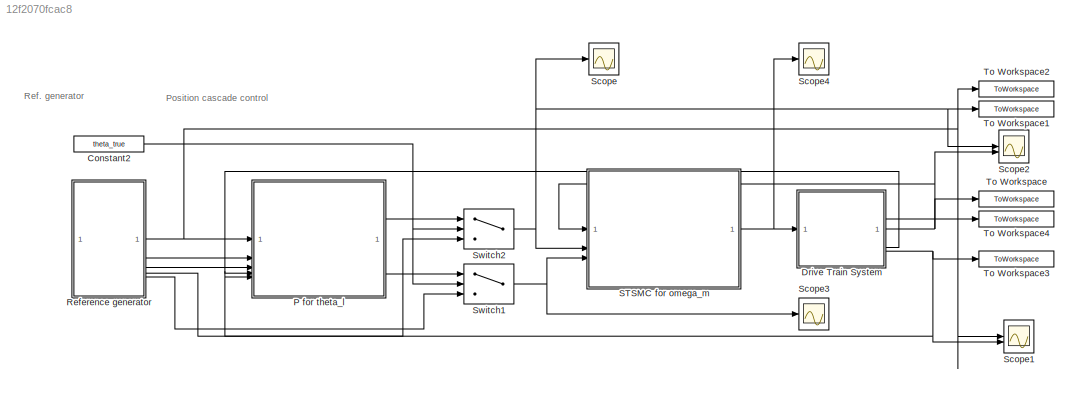
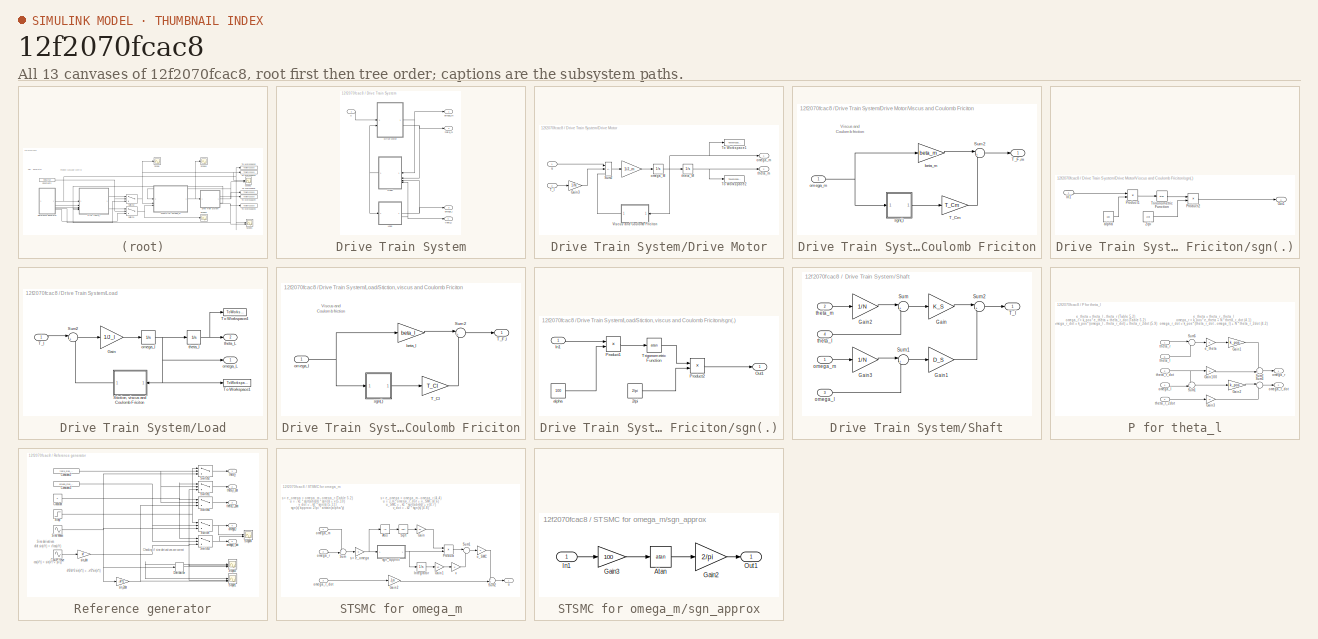
[diagram: thumbnail index - all 13 canvases of the model, root first then tree order]
MODEL slx_12f2070fcac8
KIND model
CONFIG AbsTol = auto
CONFIG EnableMultiTasking = off
CONFIG FixedStep = auto
CONFIG MaxStep = auto
CONFIG MinStep = auto
CONFIG RelTol = 1e-3
CONFIG SampleTimeConstraint = Unconstrained
CONFIG SolverName = VariableStepAuto
CONFIG StartTime = 0.0
CONFIG StopTime = 10.0
BLOCK [Constant] Constant2
  Value = theta_true
BLOCK [SubSystem] Drive Train System
BLOCK [SubSystem] Drive Train System/Drive Motor
BLOCK [Gain] Drive Train System/Drive Motor/              
  Gain = 1/J_m
BLOCK [Gain] Drive Train System/Drive Motor/Gain3
  Gain = 1/N
BLOCK [Sum] Drive Train System/Drive Motor/Sum2
  IconShape = rectangular
  Inputs = +--
BLOCK [Inport] Drive Train System/Drive Motor/T_l
  Port = 2
BLOCK [ToWorkspace] Drive Train System/Drive Motor/To Workspace1
  FixptAsFi = on
  MaxDataPoints = inf
  SampleTime = T_s
  SaveFormat = Timeseries
  VariableName = omega_m
BLOCK [ToWorkspace] Drive Train System/Drive Motor/To Workspace2
  FixptAsFi = on
  MaxDataPoints = inf
  SampleTime = T_s
  SaveFormat = Timeseries
  VariableName = theta_m
BLOCK [SubSystem] Drive Train System/Drive Motor/Viscus and Coulomb Friciton
BLOCK [Sum] Drive Train System/Drive Motor/Viscus and Coulomb Friciton/Sum2
  Inputs = |++
BLOCK [Gain] Drive Train System/Drive Motor/Viscus and Coulomb Friciton/T_Cm
  Gain = T_Cm
BLOCK [Outport] Drive Train System/Drive Motor/Viscus and Coulomb Friciton/T_F,m
BLOCK [Gain] Drive Train System/Drive Motor/Viscus and Coulomb Friciton/beta_m
  Gain = beta_m
BLOCK [Inport] Drive Train System/Drive Motor/Viscus and Coulomb Friciton/omega_m
BLOCK [SubSystem] Drive Train System/Drive Motor/Viscus and Coulomb Friciton/sgn(.)
BLOCK [Constant] Drive Train System/Drive Motor/Viscus and Coulomb Friciton/sgn(.)/2//pi
  Value = 2/pi
BLOCK [Inport] Drive Train System/Drive Motor/Viscus and Coulomb Friciton/sgn(.)/In1
BLOCK [Outport] Drive Train System/Drive Motor/Viscus and Coulomb Friciton/sgn(.)/Out1
BLOCK [Product] Drive Train System/Drive Motor/Viscus and Coulomb Friciton/sgn(.)/Product1
BLOCK [Product] Drive Train System/Drive Motor/Viscus and Coulomb Friciton/sgn(.)/Product2
BLOCK [Trigonometry] Drive Train System/Drive Motor/Viscus and Coulomb Friciton/sgn(.)/Trigonometric Function
  Operator = atan
  SampleTime = T_s
BLOCK [Constant] Drive Train System/Drive Motor/Viscus and Coulomb Friciton/sgn(.)/alpha
  Value = 100
BLOCK [Integrator] Drive Train System/Drive Motor/omega_M
  InitialCondition = x_0(1)
BLOCK [Outport] Drive Train System/Drive Motor/omega_m
BLOCK [Integrator] Drive Train System/Drive Motor/theta_M
  InitialCondition = x_0(2)
BLOCK [Outport] Drive Train System/Drive Motor/theta_m
  Port = 2
BLOCK [Inport] Drive Train System/Drive Motor/u
BLOCK [SubSystem] Drive Train System/Load
BLOCK [Gain] Drive Train System/Load/Gain
  Gain = 1/J_l
BLOCK [SubSystem] Drive Train System/Load/Stiction, viscus and Coulomb Friciton
BLOCK [Sum] Drive Train System/Load/Stiction, viscus and Coulomb Friciton/Sum2
  Inputs = |++
BLOCK [Gain] Drive Train System/Load/Stiction, viscus and Coulomb Friciton/T_Cl
  Gain = T_Cl
BLOCK [Outport] Drive Train System/Load/Stiction, viscus and Coulomb Friciton/T_F,l
BLOCK [Gain] Drive Train System/Load/Stiction, viscus and Coulomb Friciton/beta_l
  Gain = beta_l
BLOCK [Inport] Drive Train System/Load/Stiction, viscus and Coulomb Friciton/omega_l
BLOCK [SubSystem] Drive Train System/Load/Stiction, viscus and Coulomb Friciton/sgn(.)
BLOCK [Constant] Drive Train System/Load/Stiction, viscus and Coulomb Friciton/sgn(.)/2//pi
  Value = 2/pi
BLOCK [Inport] Drive Train System/Load/Stiction, viscus and Coulomb Friciton/sgn(.)/In1
BLOCK [Outport] Drive Train System/Load/Stiction, viscus and Coulomb Friciton/sgn(.)/Out1
BLOCK [Product] Drive Train System/Load/Stiction, viscus and Coulomb Friciton/sgn(.)/Product1
BLOCK [Product] Drive Train System/Load/Stiction, viscus and Coulomb Friciton/sgn(.)/Product2
BLOCK [Trigonometry] Drive Train System/Load/Stiction, viscus and Coulomb Friciton/sgn(.)/Trigonometric Function
  Operator = atan
  SampleTime = T_s
BLOCK [Constant] Drive Train System/Load/Stiction, viscus and Coulomb Friciton/sgn(.)/alpha
  Value = 100
BLOCK [Sum] Drive Train System/Load/Sum2
  Inputs = |+-
BLOCK [Inport] Drive Train System/Load/T_l
BLOCK [ToWorkspace] Drive Train System/Load/To Workspace1
  FixptAsFi = on
  MaxDataPoints = inf
  SampleTime = T_log
  SaveFormat = Timeseries
  VariableName = omega_l
BLOCK [ToWorkspace] Drive Train System/Load/To Workspace4
  FixptAsFi = on
  MaxDataPoints = inf
  SampleTime = T_log
  SaveFormat = Timeseries
  VariableName = theta_l
BLOCK [Outport] Drive Train System/Load/omega_L
BLOCK [Integrator] Drive Train System/Load/omega_l
  InitialCondition = x_l_0(1)
BLOCK [Outport] Drive Train System/Load/theta_L
  Port = 2
BLOCK [Integrator] Drive Train System/Load/theta_l
  InitialCondition = x_l_0(2)
BLOCK [SubSystem] Drive Train System/Shaft
BLOCK [Gain] Drive Train System/Shaft/Gain
  Gain = K_S
BLOCK [Gain] Drive Train System/Shaft/Gain1
  Gain = D_S
BLOCK [Gain] Drive Train System/Shaft/Gain2
  Gain = 1/N
BLOCK [Gain] Drive Train System/Shaft/Gain3
  Gain = 1/N
BLOCK [Sum] Drive Train System/Shaft/Sum
  Inputs = |+-
BLOCK [Sum] Drive Train System/Shaft/Sum1
  Inputs = |+-
BLOCK [Sum] Drive Train System/Shaft/Sum2
  Inputs = |++
BLOCK [Outport] Drive Train System/Shaft/T_l
BLOCK [Inport] Drive Train System/Shaft/omega_l
  Port = 3
BLOCK [Inport] Drive Train System/Shaft/omega_m
BLOCK [Inport] Drive Train System/Shaft/theta_l
  Port = 4
BLOCK [Inport] Drive Train System/Shaft/theta_m
  Port = 2
BLOCK [Outport] Drive Train System/omega_l
  Port = 3
BLOCK [Outport] Drive Train System/omega_m
BLOCK [Outport] Drive Train System/theta_l
  Port = 4
BLOCK [Outport] Drive Train System/theta_m
  Port = 2
BLOCK [Inport] Drive Train System/u
BLOCK [SubSystem] P for theta_l
BLOCK [Gain] P for theta_l/Gain1
  Gain = k_pos
BLOCK [Gain] P for theta_l/Gain100
  Gain = N
BLOCK [Gain] P for theta_l/Gain2
  Gain = k_pos
BLOCK [Gain] P for theta_l/Gain3
  Gain = N
BLOCK [Sum] P for theta_l/Sum1
  Inputs = +-|
BLOCK [Sum] P for theta_l/Sum2
  Inputs = ++|
BLOCK [Sum] P for theta_l/Sum3
  Inputs = |++
BLOCK [Sum] P for theta_l/Sum5
  Inputs = |+-
BLOCK [Gain] P for theta_l/e_theta
BLOCK [Inport] P for theta_l/omega_l
  Port = 4
BLOCK [Outport] P for theta_l/omega_r
BLOCK [Outport] P for theta_l/omega_r_dot
  Port = 2
BLOCK [Inport] P for theta_l/theta_l
  Port = 5
BLOCK [Inport] P for theta_l/theta_r
BLOCK [Inport] P for theta_l/theta_r_2dot
  Port = 3
BLOCK [Inport] P for theta_l/theta_r_dot
  Port = 2
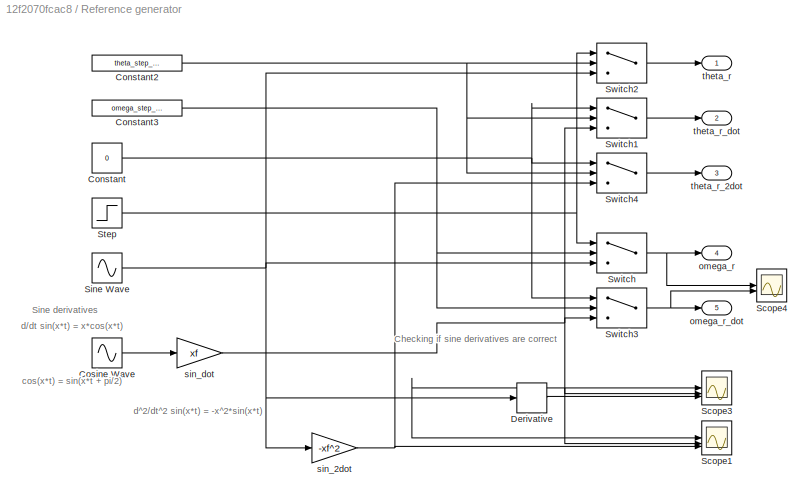
BLOCK [SubSystem] Reference generator
BLOCK [Constant] Reference generator/Constant
  Value = 0
BLOCK [Constant] Reference generator/Constant2
  Value = theta_step_true
BLOCK [Constant] Reference generator/Constant3
  Value = omega_step_true
BLOCK [Sin] Reference generator/Cosine Wave
  Frequency = xf
  Phase = pi/2
  SampleTime = 0
BLOCK [Derivative] Reference generator/Derivative
  CoefficientInTFapproximation = 1/100
BLOCK [Scope] Reference generator/Scope1
  Floating = off
  NumInputPorts = 3
  ScopeSpecificationString = Simulink.scopes.TimeScopeBlockCfg('CurrentConfiguration', extmgr.ConfigurationSet(extmgr.Configuration('Core','General UI',true),extmgr.Configuration('Core','Source UI',true),extmgr.Configuration('Sources','WiredSimulink',true,'DataLoggingVariableName','ScopeData2'),extmgr.Configuration('Visuals','Time Domain',true,'SerializedDisplays',{struct('MinYLimReal','-1.25','MaxYLimReal','1.25','YLabelReal...<+1455ch>
BLOCK [Scope] Reference generator/Scope3
  Floating = off
  NumInputPorts = 3
  ScopeSpecificationString = Simulink.scopes.TimeScopeBlockCfg('CurrentConfiguration', extmgr.ConfigurationSet(extmgr.Configuration('Core','General UI',true),extmgr.Configuration('Core','Source UI',true),extmgr.Configuration('Sources','WiredSimulink',true,'DataLoggingVariableName','ScopeData3'),extmgr.Configuration('Visuals','Time Domain',true,'SerializedDisplays',{struct('MinYLimReal','-1.25','MaxYLimReal','1.25','YLabelReal...<+1457ch>
BLOCK [Scope] Reference generator/Scope4
  Floating = off
  NumInputPorts = 2
  ScopeSpecificationString = Simulink.scopes.TimeScopeBlockCfg('CurrentConfiguration', extmgr.ConfigurationSet(extmgr.Configuration('Core','General UI',true),extmgr.Configuration('Core','Source UI',true),extmgr.Configuration('Sources','WiredSimulink',true,'DataLoggingVariableName','ScopeData1'),extmgr.Configuration('Visuals','Time Domain',true,'SerializedDisplays',{struct('MinYLimReal','-1.25','MaxYLimReal','1.25','YLabelReal...<+1512ch>
BLOCK [Sin] Reference generator/Sine Wave
  Frequency = xf
  SampleTime = 0
BLOCK [Step] Reference generator/Step
  SampleTime = 0
BLOCK [Switch] Reference generator/Switch
  Criteria = u2 > Threshold
  InputSameDT = off
  SaturateOnIntegerOverflow = off
BLOCK [Switch] Reference generator/Switch1
  Criteria = u2 > Threshold
  InputSameDT = off
  SaturateOnIntegerOverflow = off
BLOCK [Switch] Reference generator/Switch2
  Criteria = u2 > Threshold
  InputSameDT = off
  SaturateOnIntegerOverflow = off
BLOCK [Switch] Reference generator/Switch3
  Criteria = u2 > Threshold
  InputSameDT = off
  SaturateOnIntegerOverflow = off
BLOCK [Switch] Reference generator/Switch4
  Criteria = u2 > Threshold
  InputSameDT = off
  SaturateOnIntegerOverflow = off
BLOCK [Outport] Reference generator/omega_r
  Port = 4
BLOCK [Outport] Reference generator/omega_r_dot
  Port = 5
BLOCK [Gain] Reference generator/sin_2dot
  Gain = -xf^2
BLOCK [Gain] Reference generator/sin_dot
  Gain = xf
BLOCK [Outport] Reference generator/theta_r
BLOCK [Outport] Reference generator/theta_r_2dot
  Port = 3
BLOCK [Outport] Reference generator/theta_r_dot
  Port = 2
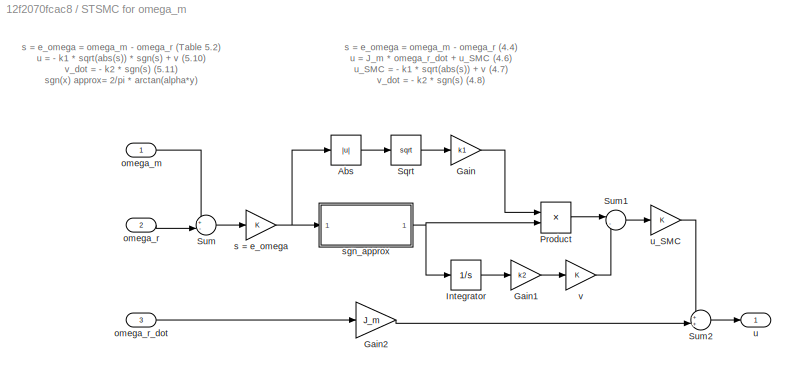
BLOCK [SubSystem] STSMC for omega_m
BLOCK [Abs] STSMC for omega_m/Abs
  SaturateOnIntegerOverflow = off
BLOCK [Gain] STSMC for omega_m/Gain
  Gain = k1
BLOCK [Gain] STSMC for omega_m/Gain1
  Gain = k2
BLOCK [Gain] STSMC for omega_m/Gain2
  Gain = J_m
BLOCK [Integrator] STSMC for omega_m/Integrator
BLOCK [Product] STSMC for omega_m/Product
BLOCK [Sqrt] STSMC for omega_m/Sqrt
BLOCK [Sum] STSMC for omega_m/Sum
  Inputs = +-|
BLOCK [Sum] STSMC for omega_m/Sum1
  Inputs = |--
BLOCK [Sum] STSMC for omega_m/Sum2
  Inputs = ++|
BLOCK [Inport] STSMC for omega_m/omega_m
BLOCK [Inport] STSMC for omega_m/omega_r
  Port = 2
BLOCK [Inport] STSMC for omega_m/omega_r_dot
  Port = 3
BLOCK [Gain] STSMC for omega_m/s = e_omega
BLOCK [SubSystem] STSMC for omega_m/sgn_approx
BLOCK [Trigonometry] STSMC for omega_m/sgn_approx/Atan
  Operator = atan
BLOCK [Gain] STSMC for omega_m/sgn_approx/Gain2
  Gain = 2/pi
BLOCK [Gain] STSMC for omega_m/sgn_approx/Gain3
  Gain = 100
BLOCK [Inport] STSMC for omega_m/sgn_approx/In1
BLOCK [Outport] STSMC for omega_m/sgn_approx/Out1
BLOCK [Outport] STSMC for omega_m/u
BLOCK [Gain] STSMC for omega_m/u_SMC
BLOCK [Gain] STSMC for omega_m/v
BLOCK [Scope] Scope
  Floating = off
  NumInputPorts = 1
  ScopeSpecificationString = Simulink.scopes.TimeScopeBlockCfg('CurrentConfiguration', extmgr.ConfigurationSet(extmgr.Configuration('Core','General UI',true),extmgr.Configuration('Core','Source UI',true),extmgr.Configuration('Sources','WiredSimulink',true,'DataLoggingVariableName','ScopeData2'),extmgr.Configuration('Visuals','Time Domain',true,'SerializedDisplays',{struct('MinYLimReal','-57.2427','MaxYLimReal','56.53432','YLa...<+1410ch>
BLOCK [Scope] Scope1
  Floating = off
  NumInputPorts = 2
  ScopeSpecificationString = Simulink.scopes.TimeScopeBlockCfg('CurrentConfiguration', extmgr.ConfigurationSet(extmgr.Configuration('Core','General UI',true),extmgr.Configuration('Core','Source UI',true),extmgr.Configuration('Sources','WiredSimulink',true,'DataLoggingVariableName','ScopeData1'),extmgr.Configuration('Visuals','Time Domain',true,'SerializedDisplays',{struct('MinYLimReal','-3.30569','MaxYLimReal','3.68822','YLab...<+1489ch>
BLOCK [Scope] Scope2
  Floating = off
  NumInputPorts = 2
  ScopeSpecificationString = Simulink.scopes.TimeScopeBlockCfg('CurrentConfiguration', extmgr.ConfigurationSet(extmgr.Configuration('Core','General UI',true),extmgr.Configuration('Core','Source UI',true),extmgr.Configuration('Sources','WiredSimulink',true,'DataLoggingVariableName','ScopeData3'),extmgr.Configuration('Visuals','Time Domain',true,'SerializedDisplays',{struct('MinYLimReal','-42.39012','MaxYLimReal','40.53692','YL...<+1479ch>
BLOCK [Scope] Scope3
  Floating = off
  NumInputPorts = 1
  ScopeSpecificationString = Simulink.scopes.TimeScopeBlockCfg('CurrentConfiguration', extmgr.ConfigurationSet(extmgr.Configuration('Core','General UI',true),extmgr.Configuration('Core','Source UI',true),extmgr.Configuration('Sources','WiredSimulink',true,'DataLoggingVariableName','ScopeData3'),extmgr.Configuration('Visuals','Time Domain',true,'SerializedDisplays',{struct('MinYLimReal','-276.14576','MaxYLimReal','281.80097','...<+1447ch>
BLOCK [Scope] Scope4
  Floating = off
  NumInputPorts = 1
  ScopeSpecificationString = Simulink.scopes.TimeScopeBlockCfg('CurrentConfiguration', extmgr.ConfigurationSet(extmgr.Configuration('Core','General UI',true),extmgr.Configuration('Core','Source UI',true),extmgr.Configuration('Sources','WiredSimulink',true,'DataLoggingVariableName','ScopeData10'),extmgr.Configuration('Visuals','Time Domain',true,'SerializedDisplays',{struct('MinYLimReal','-52.20481','MaxYLimReal','52.5919','YL...<+1446ch>
BLOCK [Switch] Switch1
  Criteria = u2 > Threshold
  InputSameDT = off
  SaturateOnIntegerOverflow = off
BLOCK [Switch] Switch2
  Criteria = u2 > Threshold
  InputSameDT = off
  SaturateOnIntegerOverflow = off
BLOCK [ToWorkspace] To Workspace
  FixptAsFi = on
  MaxDataPoints = inf
  SampleTime = -1
  SaveFormat = Timeseries
  VariableName = omega_m_out
BLOCK [ToWorkspace] To Workspace1
  FixptAsFi = on
  MaxDataPoints = inf
  SampleTime = -1
  SaveFormat = Timeseries
  VariableName = omega_r_out
BLOCK [ToWorkspace] To Workspace2
  FixptAsFi = on
  MaxDataPoints = inf
  SampleTime = -1
  SaveFormat = Timeseries
  VariableName = theta_r_out
BLOCK [ToWorkspace] To Workspace3
  FixptAsFi = on
  MaxDataPoints = inf
  SampleTime = -1
  SaveFormat = Timeseries
  VariableName = theta_l_out
BLOCK [ToWorkspace] To Workspace4
  FixptAsFi = on
  MaxDataPoints = inf
  SampleTime = -1
  SaveFormat = Timeseries
  VariableName = theta_m_out
ANNOTATION (root): Position cascade control
ANNOTATION (root): Ref. generator
ANNOTATION Drive Train System/Drive Motor/Viscus and Coulomb Friciton: Viscus and Coulomb friction
ANNOTATION Drive Train System/Load/Stiction, viscus and Coulomb Friciton: Viscus and Coulomb friction
ANNOTATION P for theta_l: e_theta = theta_l - theta_r (Table 5.2) omega_r = k_pos * e_theta + theta_r_dot (Table 5.2) omega_r_dot = k_pos * (omega_l - theta_r_dot) + theta_r_2dot (5.9)
ANNOTATION P for theta_l: e_theta = theta_r - theta_l omega_r = k_pos * e_theta + N * theta_r_dot (4.1) omega_r_dot = k_pos * (theta_r_dot - omega_l) + N * theta_r_2dot (4.2)
ANNOTATION Reference generator: Checking if sine derivatives are correct
ANNOTATION Reference generator: Sine derivatives
ANNOTATION Reference generator: d/dt sin(x*t) = x*cos(x*t) cos(x*t) = sin(x*t + pi/2)
ANNOTATION Reference generator: d^2/dt^2 sin(x*t) = -x^2*sin(x*t)
ANNOTATION STSMC for omega_m: s = e_omega = omega_m - omega_r (4.4) u = J_m * omega_r_dot + u_SMC (4.6) u_SMC = - k1 * sqrt(abs(s)) + v (4.7) v_dot = - k2 * sgn(s) (4.8)
ANNOTATION STSMC for omega_m: s = e_omega = omega_m - omega_r (Table 5.2) u = - k1 * sqrt(abs(s)) * sgn(s) + v (5.10) v_dot = - k2 * sgn(s) (5.11) sgn(x) approx= 2/pi * arctan(alpha*y)
NET Constant2:1 -> Switch1:2, Switch2:2
LINE Drive Train System/Drive Motor/              :1 -> Drive Train System/Drive Motor/omega_M:1
LINE Drive Train System/Drive Motor/Gain3:1 -> Drive Train System/Drive Motor/Sum2:2
LINE Drive Train System/Drive Motor/Sum2:1 -> Drive Train System/Drive Motor/              :1
LINE Drive Train System/Drive Motor/T_l:1 -> Drive Train System/Drive Motor/Gain3:1
LINE Drive Train System/Drive Motor/Viscus and Coulomb Friciton/Sum2:1 -> Drive Train System/Drive Motor/Viscus and Coulomb Friciton/T_F,m:1
LINE Drive Train System/Drive Motor/Viscus and Coulomb Friciton/T_Cm:1 -> Drive Train System/Drive Motor/Viscus and Coulomb Friciton/Sum2:2
LINE Drive Train System/Drive Motor/Viscus and Coulomb Friciton/beta_m:1 -> Drive Train System/Drive Motor/Viscus and Coulomb Friciton/Sum2:1
NET Drive Train System/Drive Motor/Viscus and Coulomb Friciton/omega_m:1 -> Drive Train System/Drive Motor/Viscus and Coulomb Friciton/beta_m:1, Drive Train System/Drive Motor/Viscus and Coulomb Friciton/sgn(.):1
LINE Drive Train System/Drive Motor/Viscus and Coulomb Friciton/sgn(.)/2//pi:1 -> Drive Train System/Drive Motor/Viscus and Coulomb Friciton/sgn(.)/Product2:2
LINE Drive Train System/Drive Motor/Viscus and Coulomb Friciton/sgn(.)/In1:1 -> Drive Train System/Drive Motor/Viscus and Coulomb Friciton/sgn(.)/Product1:1
LINE Drive Train System/Drive Motor/Viscus and Coulomb Friciton/sgn(.)/Product1:1 -> Drive Train System/Drive Motor/Viscus and Coulomb Friciton/sgn(.)/Trigonometric Function:1
LINE Drive Train System/Drive Motor/Viscus and Coulomb Friciton/sgn(.)/Product2:1 -> Drive Train System/Drive Motor/Viscus and Coulomb Friciton/sgn(.)/Out1:1
LINE Drive Train System/Drive Motor/Viscus and Coulomb Friciton/sgn(.)/Trigonometric Function:1 -> Drive Train System/Drive Motor/Viscus and Coulomb Friciton/sgn(.)/Product2:1
LINE Drive Train System/Drive Motor/Viscus and Coulomb Friciton/sgn(.)/alpha:1 -> Drive Train System/Drive Motor/Viscus and Coulomb Friciton/sgn(.)/Product1:2
LINE Drive Train System/Drive Motor/Viscus and Coulomb Friciton/sgn(.):1 -> Drive Train System/Drive Motor/Viscus and Coulomb Friciton/T_Cm:1
LINE Drive Train System/Drive Motor/Viscus and Coulomb Friciton:1 -> Drive Train System/Drive Motor/Sum2:3
NET Drive Train System/Drive Motor/omega_M:1 -> Drive Train System/Drive Motor/To Workspace1:1, Drive Train System/Drive Motor/Viscus and Coulomb Friciton:1, Drive Train System/Drive Motor/omega_m:1, Drive Train System/Drive Motor/theta_M:1
NET Drive Train System/Drive Motor/theta_M:1 -> Drive Train System/Drive Motor/To Workspace2:1, Drive Train System/Drive Motor/theta_m:1
LINE Drive Train System/Drive Motor/u:1 -> Drive Train System/Drive Motor/Sum2:1
NET Drive Train System/Drive Motor:1 -> Drive Train System/Shaft:1, Drive Train System/omega_m:1
NET Drive Train System/Drive Motor:2 -> Drive Train System/Shaft:2, Drive Train System/theta_m:1
LINE Drive Train System/Load/Gain:1 -> Drive Train System/Load/omega_l:1
LINE Drive Train System/Load/Stiction, viscus and Coulomb Friciton/Sum2:1 -> Drive Train System/Load/Stiction, viscus and Coulomb Friciton/T_F,l:1
LINE Drive Train System/Load/Stiction, viscus and Coulomb Friciton/T_Cl:1 -> Drive Train System/Load/Stiction, viscus and Coulomb Friciton/Sum2:2
LINE Drive Train System/Load/Stiction, viscus and Coulomb Friciton/beta_l:1 -> Drive Train System/Load/Stiction, viscus and Coulomb Friciton/Sum2:1
NET Drive Train System/Load/Stiction, viscus and Coulomb Friciton/omega_l:1 -> Drive Train System/Load/Stiction, viscus and Coulomb Friciton/beta_l:1, Drive Train System/Load/Stiction, viscus and Coulomb Friciton/sgn(.):1
LINE Drive Train System/Load/Stiction, viscus and Coulomb Friciton/sgn(.)/2//pi:1 -> Drive Train System/Load/Stiction, viscus and Coulomb Friciton/sgn(.)/Product2:2
LINE Drive Train System/Load/Stiction, viscus and Coulomb Friciton/sgn(.)/In1:1 -> Drive Train System/Load/Stiction, viscus and Coulomb Friciton/sgn(.)/Product1:1
LINE Drive Train System/Load/Stiction, viscus and Coulomb Friciton/sgn(.)/Product1:1 -> Drive Train System/Load/Stiction, viscus and Coulomb Friciton/sgn(.)/Trigonometric Function:1
LINE Drive Train System/Load/Stiction, viscus and Coulomb Friciton/sgn(.)/Product2:1 -> Drive Train System/Load/Stiction, viscus and Coulomb Friciton/sgn(.)/Out1:1
LINE Drive Train System/Load/Stiction, viscus and Coulomb Friciton/sgn(.)/Trigonometric Function:1 -> Drive Train System/Load/Stiction, viscus and Coulomb Friciton/sgn(.)/Product2:1
LINE Drive Train System/Load/Stiction, viscus and Coulomb Friciton/sgn(.)/alpha:1 -> Drive Train System/Load/Stiction, viscus and Coulomb Friciton/sgn(.)/Product1:2
LINE Drive Train System/Load/Stiction, viscus and Coulomb Friciton/sgn(.):1 -> Drive Train System/Load/Stiction, viscus and Coulomb Friciton/T_Cl:1
LINE Drive Train System/Load/Stiction, viscus and Coulomb Friciton:1 -> Drive Train System/Load/Sum2:2
LINE Drive Train System/Load/Sum2:1 -> Drive Train System/Load/Gain:1
LINE Drive Train System/Load/T_l:1 -> Drive Train System/Load/Sum2:1
NET Drive Train System/Load/omega_l:1 -> Drive Train System/Load/Stiction, viscus and Coulomb Friciton:1, Drive Train System/Load/To Workspace1:1, Drive Train System/Load/omega_L:1, Drive Train System/Load/theta_l:1
NET Drive Train System/Load/theta_l:1 -> Drive Train System/Load/To Workspace4:1, Drive Train System/Load/theta_L:1
NET Drive Train System/Load:1 -> Drive Train System/Shaft:3, Drive Train System/omega_l:1
NET Drive Train System/Load:2 -> Drive Train System/Shaft:4, Drive Train System/theta_l:1
LINE Drive Train System/Shaft/Gain1:1 -> Drive Train System/Shaft/Sum2:2
LINE Drive Train System/Shaft/Gain2:1 -> Drive Train System/Shaft/Sum:1
LINE Drive Train System/Shaft/Gain3:1 -> Drive Train System/Shaft/Sum1:1
LINE Drive Train System/Shaft/Gain:1 -> Drive Train System/Shaft/Sum2:1
LINE Drive Train System/Shaft/Sum1:1 -> Drive Train System/Shaft/Gain1:1
LINE Drive Train System/Shaft/Sum2:1 -> Drive Train System/Shaft/T_l:1
LINE Drive Train System/Shaft/Sum:1 -> Drive Train System/Shaft/Gain:1
LINE Drive Train System/Shaft/omega_l:1 -> Drive Train System/Shaft/Sum1:2
LINE Drive Train System/Shaft/omega_m:1 -> Drive Train System/Shaft/Gain3:1
LINE Drive Train System/Shaft/theta_l:1 -> Drive Train System/Shaft/Sum:2
LINE Drive Train System/Shaft/theta_m:1 -> Drive Train System/Shaft/Gain2:1
NET Drive Train System/Shaft:1 -> Drive Train System/Drive Motor:2, Drive Train System/Load:1
LINE Drive Train System/u:1 -> Drive Train System/Drive Motor:1
NET Drive Train System:1 -> STSMC for omega_m:1, Scope2:2, To Workspace:1
LINE Drive Train System:2 -> To Workspace4:1
LINE Drive Train System:3 -> P for theta_l:4
NET Drive Train System:4 -> P for theta_l:5, Scope1:2, To Workspace3:1
LINE P for theta_l/Gain100:1 -> P for theta_l/Sum2:2
LINE P for theta_l/Gain1:1 -> P for theta_l/Sum2:1
LINE P for theta_l/Gain2:1 -> P for theta_l/Sum3:1
LINE P for theta_l/Gain3:1 -> P for theta_l/Sum3:2
LINE P for theta_l/Sum1:1 -> P for theta_l/Gain2:1
LINE P for theta_l/Sum2:1 -> P for theta_l/omega_r:1
LINE P for theta_l/Sum3:1 -> P for theta_l/omega_r_dot:1
LINE P for theta_l/Sum5:1 -> P for theta_l/e_theta:1
LINE P for theta_l/e_theta:1 -> P for theta_l/Gain1:1
LINE P for theta_l/omega_l:1 -> P for theta_l/Sum1:2
LINE P for theta_l/theta_l:1 -> P for theta_l/Sum5:2
LINE P for theta_l/theta_r:1 -> P for theta_l/Sum5:1
LINE P for theta_l/theta_r_2dot:1 -> P for theta_l/Gain3:1
NET P for theta_l/theta_r_dot:1 -> P for theta_l/Gain100:1, P for theta_l/Sum1:1
LINE P for theta_l:1 -> Switch2:1
LINE P for theta_l:2 -> Switch1:1
NET Reference generator/Constant2:1 -> Reference generator/Switch1:2, Reference generator/Switch2:2, Reference generator/Switch4:2
NET Reference generator/Constant3:1 -> Reference generator/Switch3:2, Reference generator/Switch:2
NET Reference generator/Constant:1 -> Reference generator/Switch1:1, Reference generator/Switch3:1, Reference generator/Switch4:1
LINE Reference generator/Cosine Wave:1 -> Reference generator/sin_dot:1
LINE Reference generator/Derivative:1 -> Reference generator/Scope3:3
NET Reference generator/Sine Wave:1 -> Reference generator/Derivative:1, Reference generator/Scope1:1, Reference generator/Scope3:1, Reference generator/Switch2:3, Reference generator/Switch:3, Reference generator/sin_2dot:1
NET Reference generator/Step:1 -> Reference generator/Switch2:1, Reference generator/Switch:1
LINE Reference generator/Switch1:1 -> Reference generator/theta_r_dot:1
LINE Reference generator/Switch2:1 -> Reference generator/theta_r:1
NET Reference generator/Switch3:1 -> Reference generator/Scope4:2, Reference generator/omega_r_dot:1
LINE Reference generator/Switch4:1 -> Reference generator/theta_r_2dot:1
NET Reference generator/Switch:1 -> Reference generator/Scope4:1, Reference generator/omega_r:1
NET Reference generator/sin_2dot:1 -> Reference generator/Scope1:3, Reference generator/Switch4:3
NET Reference generator/sin_dot:1 -> Reference generator/Scope1:2, Reference generator/Scope3:2, Reference generator/Switch1:3, Reference generator/Switch3:3
NET Reference generator:1 -> P for theta_l:1, Scope1:1, To Workspace2:1
LINE Reference generator:2 -> P for theta_l:2
LINE Reference generator:3 -> P for theta_l:3
LINE Reference generator:4 -> Switch2:3
LINE Reference generator:5 -> Switch1:3
LINE STSMC for omega_m/Abs:1 -> STSMC for omega_m/Sqrt:1
LINE STSMC for omega_m/Gain1:1 -> STSMC for omega_m/v:1
LINE STSMC for omega_m/Gain2:1 -> STSMC for omega_m/Sum2:2
LINE STSMC for omega_m/Gain:1 -> STSMC for omega_m/Product:1
LINE STSMC for omega_m/Integrator:1 -> STSMC for omega_m/Gain1:1
LINE STSMC for omega_m/Product:1 -> STSMC for omega_m/Sum1:1
LINE STSMC for omega_m/Sqrt:1 -> STSMC for omega_m/Gain:1
LINE STSMC for omega_m/Sum1:1 -> STSMC for omega_m/u_SMC:1
LINE STSMC for omega_m/Sum2:1 -> STSMC for omega_m/u:1
LINE STSMC for omega_m/Sum:1 -> STSMC for omega_m/s = e_omega:1
LINE STSMC for omega_m/omega_m:1 -> STSMC for omega_m/Sum:1
LINE STSMC for omega_m/omega_r:1 -> STSMC for omega_m/Sum:2
LINE STSMC for omega_m/omega_r_dot:1 -> STSMC for omega_m/Gain2:1
NET STSMC for omega_m/s = e_omega:1 -> STSMC for omega_m/Abs:1, STSMC for omega_m/sgn_approx:1
LINE STSMC for omega_m/sgn_approx/Atan:1 -> STSMC for omega_m/sgn_approx/Gain2:1
LINE STSMC for omega_m/sgn_approx/Gain2:1 -> STSMC for omega_m/sgn_approx/Out1:1
LINE STSMC for omega_m/sgn_approx/Gain3:1 -> STSMC for omega_m/sgn_approx/Atan:1
LINE STSMC for omega_m/sgn_approx/In1:1 -> STSMC for omega_m/sgn_approx/Gain3:1
NET STSMC for omega_m/sgn_approx:1 -> STSMC for omega_m/Integrator:1, STSMC for omega_m/Product:2
LINE STSMC for omega_m/u_SMC:1 -> STSMC for omega_m/Sum2:1
LINE STSMC for omega_m/v:1 -> STSMC for omega_m/Sum1:2
NET STSMC for omega_m:1 -> Drive Train System:1, Scope4:1
NET Switch1:1 -> STSMC for omega_m:3, Scope3:1
NET Switch2:1 -> STSMC for omega_m:2, Scope2:1, Scope:1, To Workspace1:1
note: NET lines group one-source signal fan-out (src -> all destinations, sorted); 1:1 wires keep LINE
